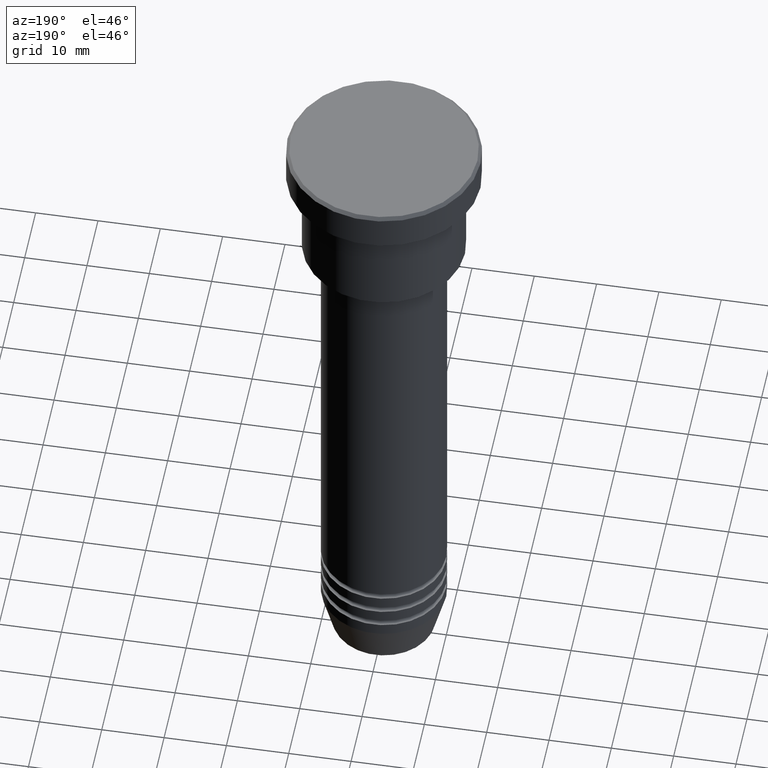
[diagram: clean part render]
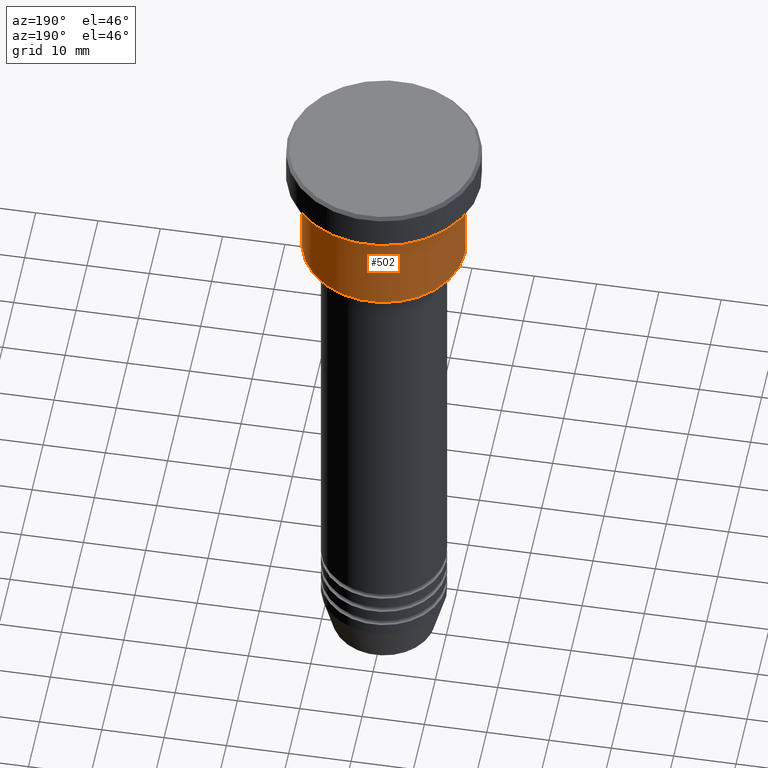
[diagram: same view with one face highlighted and labeled with its STEP entity id]
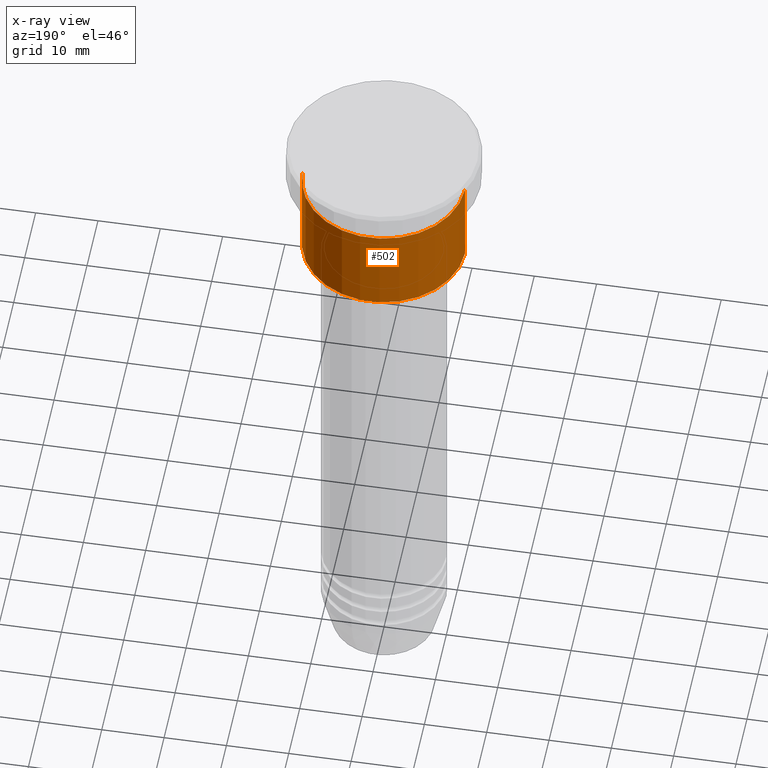
[diagram: x-ray of the same camera — body ghosted, the highlighted face saturated]
A machine part, auxiliary view. The second image highlights one B-rep face of the part: STEP entity #502.
The next image is the same camera in x-ray: the body ghosted, the highlighted face saturated — about 0% of this face is hidden behind the body in this view.
In plain terms, the highlighted cylindrical surface (partial cylindrical patch) has radius 13 mm, axis along (-0, -0, 1).
Its self-contained STEP definition (entity closure, byte-faithful):
#31 = ORIENTED_EDGE ( 'NONE', *, *, #645, .T. ) ;
#42 = LINE ( 'NONE', #394, #343 ) ;
#83 = DIRECTION ( 'NONE',  ( -1.000000000000000000, 0.000000000000000000, 0.000000000000000000 ) ) ;
#101 = AXIS2_PLACEMENT_3D ( 'NONE', #760, #312, #777 ) ;
#140 = AXIS2_PLACEMENT_3D ( 'NONE', #422, #163, #83 ) ;
#163 = DIRECTION ( 'NONE',  ( -0.000000000000000000, -0.000000000000000000, 1.000000000000000000 ) ) ;
#186 = CARTESIAN_POINT ( 'NONE',  ( 0.000000000000000000, 0.000000000000000000, -6.999999999999995559 ) ) ;
#187 = EDGE_LOOP ( 'NONE', ( #31, #272, #644, #1163 ) ) ;
#192 = EDGE_CURVE ( 'NONE', #826, #898, #623, .T. ) ;
#239 = VERTEX_POINT ( 'NONE', #987 ) ;
#254 = VERTEX_POINT ( 'NONE', #793 ) ;
#272 = ORIENTED_EDGE ( 'NONE', *, *, #192, .T. ) ;
#286 = CARTESIAN_POINT ( 'NONE',  ( -13.00000000000000000, 1.592040838891559095E-15, -21.49999999999998934 ) ) ;
#312 = DIRECTION ( 'NONE',  ( -0.000000000000000000, -0.000000000000000000, 1.000000000000000000 ) ) ;
#326 = CIRCLE ( 'NONE', #140, 13.00000000000000000 ) ;
#339 = CARTESIAN_POINT ( 'NONE',  ( -13.00000000000000000, 1.592040838891559095E-15, 0.000000000000000000 ) ) ;
#343 = VECTOR ( 'NONE', #1138, 1000.000000000000000 ) ;
#394 = CARTESIAN_POINT ( 'NONE',  ( 13.00000000000000000, 0.000000000000000000, 0.000000000000000000 ) ) ;
#422 = CARTESIAN_POINT ( 'NONE',  ( 0.000000000000000000, 0.000000000000000000, -21.49999999999998934 ) ) ;
#487 = EDGE_CURVE ( 'NONE', #239, #254, #42, .T. ) ;
#502 = ADVANCED_FACE ( 'NONE', ( #782 ), #1050, .T. ) ;
#512 = VECTOR ( 'NONE', #545, 1000.000000000000000 ) ;
#545 = DIRECTION ( 'NONE',  ( -0.000000000000000000, -0.000000000000000000, 1.000000000000000000 ) ) ;
#549 = DIRECTION ( 'NONE',  ( 1.000000000000000000, 0.000000000000000000, 0.000000000000000000 ) ) ;
#623 = LINE ( 'NONE', #339, #512 ) ;
#644 = ORIENTED_EDGE ( 'NONE', *, *, #816, .F. ) ;
#645 = EDGE_CURVE ( 'NONE', #239, #826, #326, .T. ) ;
#657 = CIRCLE ( 'NONE', #1135, 13.00000000000000000 ) ;
#735 = DIRECTION ( 'NONE',  ( -0.000000000000000000, -0.000000000000000000, 1.000000000000000000 ) ) ;
#760 = CARTESIAN_POINT ( 'NONE',  ( 0.000000000000000000, 0.000000000000000000, 0.000000000000000000 ) ) ;
#777 = DIRECTION ( 'NONE',  ( 1.000000000000000000, 0.000000000000000000, 0.000000000000000000 ) ) ;
#782 = FACE_OUTER_BOUND ( 'NONE', #187, .T. ) ;
#793 = CARTESIAN_POINT ( 'NONE',  ( 13.00000000000000000, 0.000000000000000000, -6.999999999999995559 ) ) ;
#816 = EDGE_CURVE ( 'NONE', #254, #898, #657, .T. ) ;
#826 = VERTEX_POINT ( 'NONE', #286 ) ;
#898 = VERTEX_POINT ( 'NONE', #1121 ) ;
#987 = CARTESIAN_POINT ( 'NONE',  ( 13.00000000000000000, 0.000000000000000000, -21.49999999999998934 ) ) ;
#1050 = CYLINDRICAL_SURFACE ( 'NONE', #101, 13.00000000000000000 ) ;
#1121 = CARTESIAN_POINT ( 'NONE',  ( -13.00000000000000000, 1.592040838891559095E-15, -6.999999999999995559 ) ) ;
#1135 = AXIS2_PLACEMENT_3D ( 'NONE', #186, #735, #549 ) ;
#1138 = DIRECTION ( 'NONE',  ( -0.000000000000000000, -0.000000000000000000, 1.000000000000000000 ) ) ;
#1163 = ORIENTED_EDGE ( 'NONE', *, *, #487, .F. ) ;